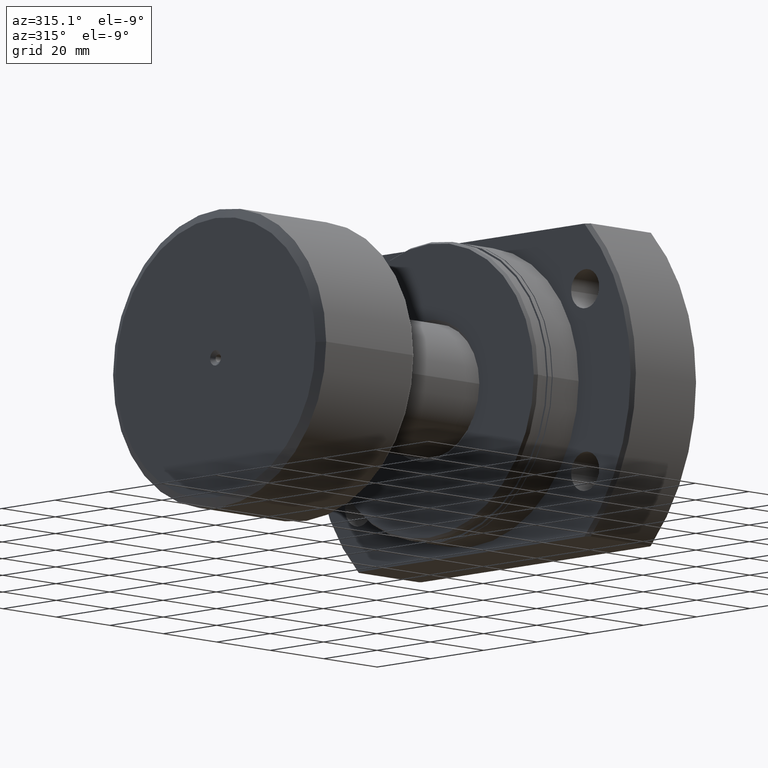
[diagram: clean part render]
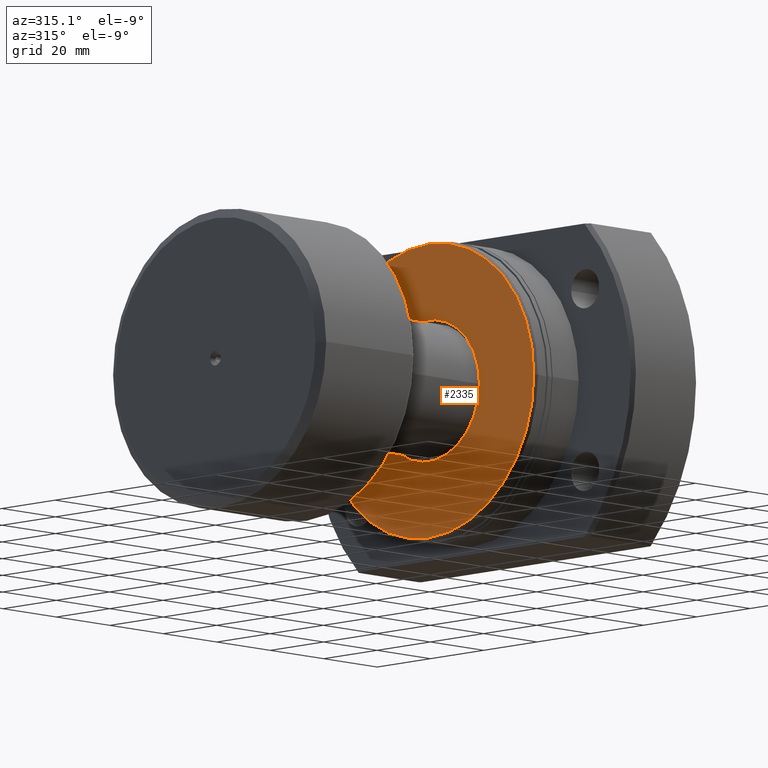
[diagram: same view with one face highlighted and labeled with its STEP entity id]
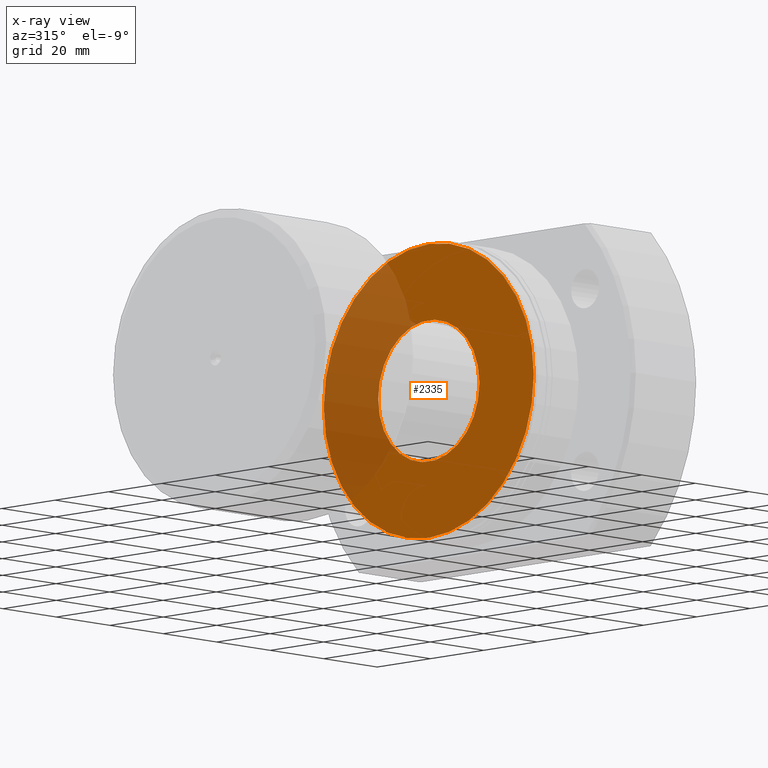
[diagram: x-ray of the same camera — body ghosted, the highlighted face saturated]
A machine part, auxiliary view. The second image highlights one B-rep face of the part: STEP entity #2335.
The next image is the same camera in x-ray: the body ghosted, the highlighted face saturated — about 32% of this face is hidden behind the body in this view.
In plain terms, the highlighted planar face has unit normal (1, 0, 0).
Its self-contained STEP definition (entity closure, byte-faithful):
#38 = EDGE_CURVE ( 'NONE', #2540, #1872, #885, .T. ) ;
#43 = ORIENTED_EDGE ( 'NONE', *, *, #38, .F. ) ;
#47 = FACE_BOUND ( 'NONE', #305, .T. ) ;
#52 = DIRECTION ( 'NONE',  ( -4.782824563834187556E-17, 1.000000000000000000, 0.000000000000000000 ) ) ;
#305 = EDGE_LOOP ( 'NONE', ( #1827, #1295 ) ) ;
#316 = EDGE_CURVE ( 'NONE', #930, #2699, #1676, .T. ) ;
#471 = EDGE_LOOP ( 'NONE', ( #2954, #43 ) ) ;
#543 = CARTESIAN_POINT ( 'NONE',  ( 6.938893903907228378E-15, 3.851859888774471706E-31, 0.000000000000000000 ) ) ;
#786 = CARTESIAN_POINT ( 'NONE',  ( 6.038212648290587597E-16, 19.00000000000052935, 2.326828918380036051E-15 ) ) ;
#885 = CIRCLE ( 'NONE', #990, 39.42264973081037027 ) ;
#930 = VERTEX_POINT ( 'NONE', #786 ) ;
#990 = AXIS2_PLACEMENT_3D ( 'NONE', #543, #1541, #52 ) ;
#1088 = DIRECTION ( 'NONE',  ( 1.000000000000000000, 4.782824563834189405E-17, -0.000000000000000000 ) ) ;
#1202 = CARTESIAN_POINT ( 'NONE',  ( 1.471183002817462307E-15, -3.879172424281811273E-29, 0.000000000000000000 ) ) ;
#1229 = CARTESIAN_POINT ( 'NONE',  ( 8.824410078946739874E-15, -39.42264973081037027, 4.863234688631915496E-15 ) ) ;
#1287 = CARTESIAN_POINT ( 'NONE',  ( 5.053377728867717670E-15, 39.42264973081037027, 0.000000000000000000 ) ) ;
#1295 = ORIENTED_EDGE ( 'NONE', *, *, #316, .T. ) ;
#1314 = DIRECTION ( 'NONE',  ( -4.782824563834189405E-17, 1.000000000000000000, 0.000000000000000000 ) ) ;
#1499 = CARTESIAN_POINT ( 'NONE',  ( 1.471183002817462307E-15, -3.879172424281811273E-29, 0.000000000000000000 ) ) ;
#1541 = DIRECTION ( 'NONE',  ( 1.000000000000000000, 4.782824563834189405E-17, -0.000000000000000000 ) ) ;
#1562 = FACE_OUTER_BOUND ( 'NONE', #471, .T. ) ;
#1596 = CARTESIAN_POINT ( 'NONE',  ( 1.471183002817414384E-15, 7.036410203770473457E-32, 0.000000000000000000 ) ) ;
#1652 = EDGE_CURVE ( 'NONE', #2699, #930, #3032, .T. ) ;
#1676 = CIRCLE ( 'NONE', #2084, 19.00000000000052935 ) ;
#1721 = DIRECTION ( 'NONE',  ( -4.782824563834189405E-17, 1.000000000000000000, 0.000000000000000000 ) ) ;
#1739 = DIRECTION ( 'NONE',  ( 1.000000000000000000, 4.782824563834189405E-17, -0.000000000000000000 ) ) ;
#1745 = AXIS2_PLACEMENT_3D ( 'NONE', #1596, #2034, #1314 ) ;
#1827 = ORIENTED_EDGE ( 'NONE', *, *, #1652, .T. ) ;
#1869 = CARTESIAN_POINT ( 'NONE',  ( 6.938893903907228378E-15, 3.851859888774471706E-31, 0.000000000000000000 ) ) ;
#1872 = VERTEX_POINT ( 'NONE', #1287 ) ;
#1900 = AXIS2_PLACEMENT_3D ( 'NONE', #1202, #1739, #1721 ) ;
#2034 = DIRECTION ( 'NONE',  ( 1.000000000000000000, 4.782824563834189405E-17, -0.000000000000000000 ) ) ;
#2054 = AXIS2_PLACEMENT_3D ( 'NONE', #1869, #1088, #2086 ) ;
#2084 = AXIS2_PLACEMENT_3D ( 'NONE', #1499, #2481, #3211 ) ;
#2086 = DIRECTION ( 'NONE',  ( -4.782824563834187556E-17, 1.000000000000000000, 0.000000000000000000 ) ) ;
#2335 = ADVANCED_FACE ( 'NONE', ( #47, #1562 ), #2557, .F. ) ;
#2367 = CIRCLE ( 'NONE', #2054, 39.42264973081037027 ) ;
#2481 = DIRECTION ( 'NONE',  ( 1.000000000000000000, 4.782824563834189405E-17, -0.000000000000000000 ) ) ;
#2540 = VERTEX_POINT ( 'NONE', #1229 ) ;
#2557 = PLANE ( 'NONE',  #1745 ) ;
#2699 = VERTEX_POINT ( 'NONE', #2778 ) ;
#2778 = CARTESIAN_POINT ( 'NONE',  ( 2.338544740805865854E-15, -18.99999999999943157, 0.000000000000000000 ) ) ;
#2859 = EDGE_CURVE ( 'NONE', #1872, #2540, #2367, .T. ) ;
#2954 = ORIENTED_EDGE ( 'NONE', *, *, #2859, .F. ) ;
#3032 = CIRCLE ( 'NONE', #1900, 19.00000000000052935 ) ;
#3211 = DIRECTION ( 'NONE',  ( -4.782824563834189405E-17, 1.000000000000000000, 0.000000000000000000 ) ) ;